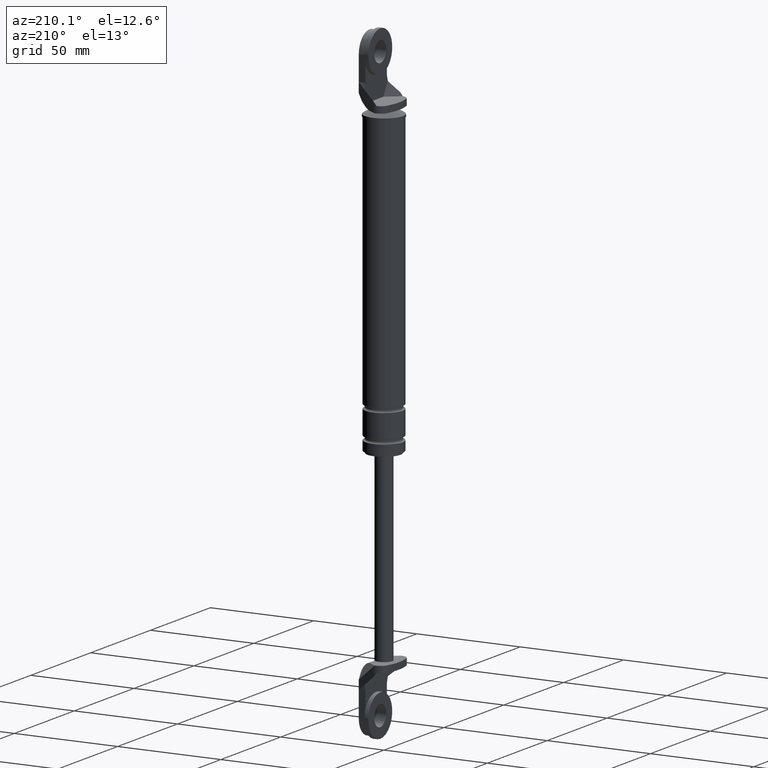
[diagram: clean part render]
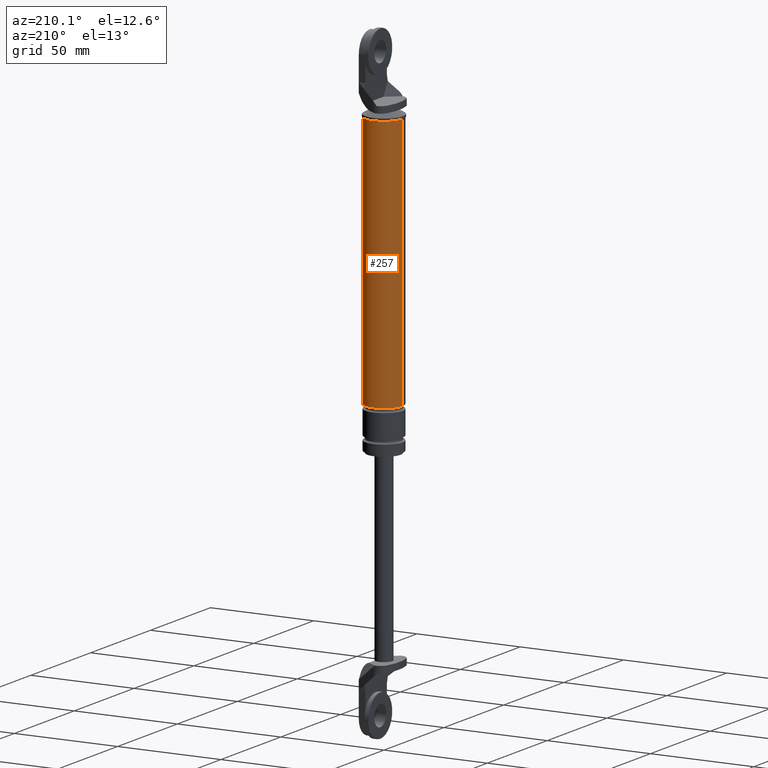
[diagram: same view with one face highlighted and labeled with its STEP entity id]
A machine part, auxiliary view. The second image highlights one B-rep face of the part: STEP entity #257.
In plain terms, the highlighted cylindrical surface (edge-blend (fillet) strip) has radius 9 mm, axis along (0, 0, 1).
Its self-contained STEP definition (entity closure, byte-faithful):
#257=ADVANCED_FACE('',(#825),#824,.T.);
#824=CYLINDRICAL_SURFACE('',#1568,9.00000000000E+000);
#825=FACE_OUTER_BOUND('',#1569,.T.);
#1565=CARTESIAN_POINT('',(0.00000000000E+000,3.58204186421E-014,0.00000000000E+000));
#1566=DIRECTION('',(-0.00000000000E+000,-0.00000000000E+000,1.00000000000E+000));
#1567=DIRECTION('',(1.00000000000E+000,0.00000000000E+000,0.00000000000E+000));
#1568=AXIS2_PLACEMENT_3D('',#1565,#1566,#1567);
#1569=EDGE_LOOP('',(#2008,#2009,#2010,#2011));
#2008=ORIENTED_EDGE('',*,*,#2216,.T.);
#2009=ORIENTED_EDGE('',*,*,#2283,.F.);
#2010=ORIENTED_EDGE('',*,*,#2270,.F.);
#2011=ORIENTED_EDGE('',*,*,#2284,.T.);
#2216=EDGE_CURVE('',#2744,#2743,#2751,.T.);
#2270=EDGE_CURVE('',#3087,#3086,#3106,.T.);
#2283=EDGE_CURVE('',#3086,#2743,#3186,.T.);
#2284=EDGE_CURVE('',#3087,#2744,#3192,.T.);
#2743=VERTEX_POINT('',#3920);
#2744=VERTEX_POINT('',#3921);
#2751=CIRCLE('',#3929,9.00000000000E+000);
#3086=VERTEX_POINT('',#4127);
#3087=VERTEX_POINT('',#4128);
#3106=CIRCLE('',#4146,9.00000000000E+000);
#3186=(BOUNDED_CURVE() B_SPLINE_CURVE(1,(#4183,#4184),.UNSPECIFIED.,.F.,.F.) B_SPLINE_CURVE_WITH_KNOTS((2,2),(6.97836706411E-002,9.30216329116E-001),.UNSPECIFIED.) CURVE() GEOMETRIC_REPRESENTATION_ITEM() RATIONAL_B_SPLINE_CURVE((1.00000000000E+000,1.00000000000E+000)) REPRESENTATION_ITEM('') );
#3192=(BOUNDED_CURVE() B_SPLINE_CURVE(1,(#4185,#4186),.UNSPECIFIED.,.F.,.F.) B_SPLINE_CURVE_WITH_KNOTS((2,2),(6.97836706211E-002,9.30216329379E-001),.UNSPECIFIED.) CURVE() GEOMETRIC_REPRESENTATION_ITEM() RATIONAL_B_SPLINE_CURVE((7.50000000000E-001,7.50000000000E-001)) REPRESENTATION_ITEM('') );
#3920=CARTESIAN_POINT('',(9.00000000000E+000,3.61192557345E-014,8.52999850000E+001));
#3921=CARTESIAN_POINT('',(-9.00000000000E+000,3.58204186421E-014,8.52999850000E+001));
#3926=CARTESIAN_POINT('',(0.00000000000E+000,3.58204186421E-014,8.52999850000E+001));
#3927=DIRECTION('',(-0.00000000000E+000,0.00000000000E+000,-1.00000000000E+000));
#3928=DIRECTION('',(-1.00000000000E+000,-1.22460635382E-016,0.00000000000E+000));
#3929=AXIS2_PLACEMENT_3D('',#3926,#3927,#3928);
#4127=CARTESIAN_POINT('',(9.00000000000E+000,3.61192557345E-014,-3.80000150000E+001));
#4128=CARTESIAN_POINT('',(-9.00000000000E+000,3.58204186421E-014,-3.80000150000E+001));
#4143=CARTESIAN_POINT('',(0.00000000000E+000,3.58204186421E-014,-3.80000150000E+001));
#4144=DIRECTION('',(-0.00000000000E+000,0.00000000000E+000,-1.00000000000E+000));
#4145=DIRECTION('',(-1.00000000000E+000,-1.22460635382E-016,0.00000000000E+000));
#4146=AXIS2_PLACEMENT_3D('',#4143,#4144,#4145);
#4183=CARTESIAN_POINT('',(9.00000000000E+000,3.58204186421E-014,-3.80000149971E+001));
#4184=CARTESIAN_POINT('',(9.00000000000E+000,3.58204186421E-014,8.52999849623E+001));
#4185=CARTESIAN_POINT('',(-9.00000000000E+000,3.52310773148E-014,-3.80000150000E+001));
#4186=CARTESIAN_POINT('',(-9.00000000000E+000,3.52310773148E-014,8.52999850000E+001));